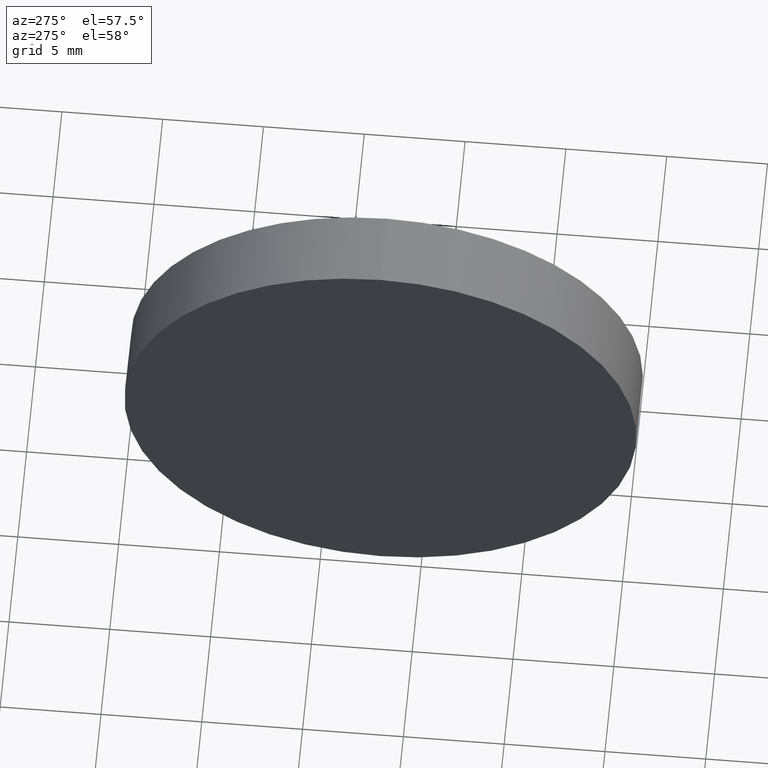
[diagram: clean part render]
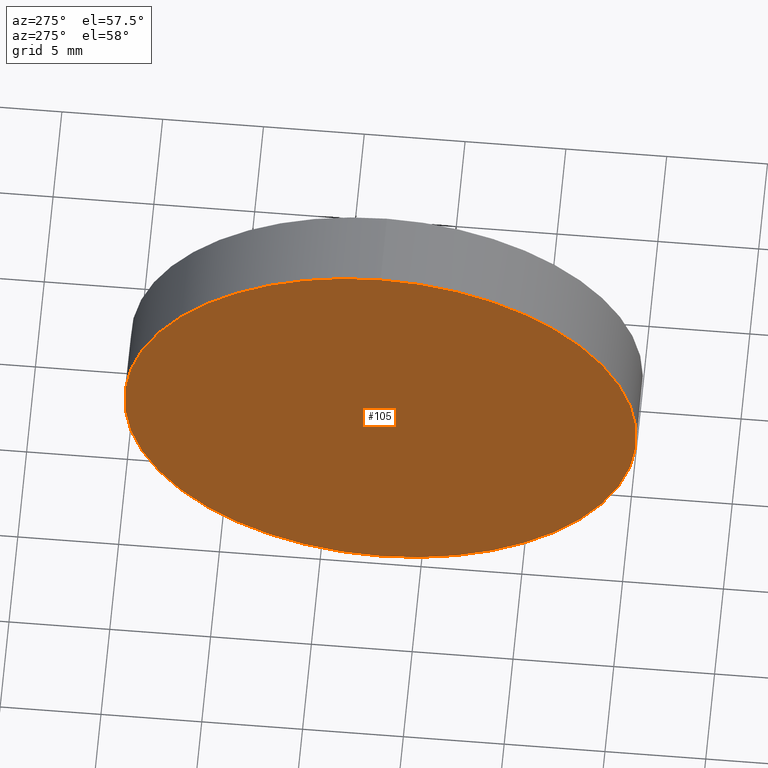
[diagram: same view with one face highlighted and labeled with its STEP entity id]
A machine part, auxiliary view. The second image highlights one B-rep face of the part: STEP entity #105.
In plain terms, the highlighted planar face has unit normal (1, 0, 0).
Its self-contained STEP definition (entity closure, byte-faithful):
#13 = VERTEX_POINT ( 'NONE', #171 ) ;
#31 = DIRECTION ( 'NONE',  ( 0.0000000000000000000, 0.0000000000000000000, 1.000000000000000000 ) ) ;
#41 = CARTESIAN_POINT ( 'NONE',  ( 430.0975226091756000, 147.0190194296691600, 0.0000000000000000000 ) ) ;
#53 = AXIS2_PLACEMENT_3D ( 'NONE', #41, #90, #57 ) ;
#57 = DIRECTION ( 'NONE',  ( 0.0000000000000000000, 0.0000000000000000000, -1.000000000000000000 ) ) ;
#65 = CARTESIAN_POINT ( 'NONE',  ( 430.0975226091756000, 147.0190194296691600, 12.70000000000001700 ) ) ;
#70 = ORIENTED_EDGE ( 'NONE', *, *, #167, .T. ) ;
#77 = EDGE_LOOP ( 'NONE', ( #70, #138 ) ) ;
#78 = DIRECTION ( 'NONE',  ( -1.000000000000000000, -0.0000000000000000000, -0.0000000000000000000 ) ) ;
#90 = DIRECTION ( 'NONE',  ( 1.000000000000000000, 0.0000000000000000000, 0.0000000000000000000 ) ) ;
#94 = DIRECTION ( 'NONE',  ( -1.000000000000000000, -0.0000000000000000000, -0.0000000000000000000 ) ) ;
#104 = CARTESIAN_POINT ( 'NONE',  ( 430.0975226091756000, 147.0190194296691600, 0.0000000000000000000 ) ) ;
#105 = ADVANCED_FACE ( 'NONE', ( #113 ), #117, .F. ) ;
#110 = DIRECTION ( 'NONE',  ( 0.0000000000000000000, 0.0000000000000000000, 1.000000000000000000 ) ) ;
#113 = FACE_OUTER_BOUND ( 'NONE', #77, .T. ) ;
#117 = PLANE ( 'NONE',  #53 ) ;
#123 = VERTEX_POINT ( 'NONE', #65 ) ;
#138 = ORIENTED_EDGE ( 'NONE', *, *, #185, .T. ) ;
#144 = AXIS2_PLACEMENT_3D ( 'NONE', #152, #78, #31 ) ;
#152 = CARTESIAN_POINT ( 'NONE',  ( 430.0975226091756000, 147.0190194296691600, 0.0000000000000000000 ) ) ;
#166 = AXIS2_PLACEMENT_3D ( 'NONE', #104, #94, #110 ) ;
#167 = EDGE_CURVE ( 'NONE', #123, #13, #178, .T. ) ;
#168 = CIRCLE ( 'NONE', #166, 12.70000000000001700 ) ;
#171 = CARTESIAN_POINT ( 'NONE',  ( 430.0975226091756000, 147.0190194296691600, -12.70000000000001700 ) ) ;
#178 = CIRCLE ( 'NONE', #144, 12.70000000000001700 ) ;
#185 = EDGE_CURVE ( 'NONE', #13, #123, #168, .T. ) ;